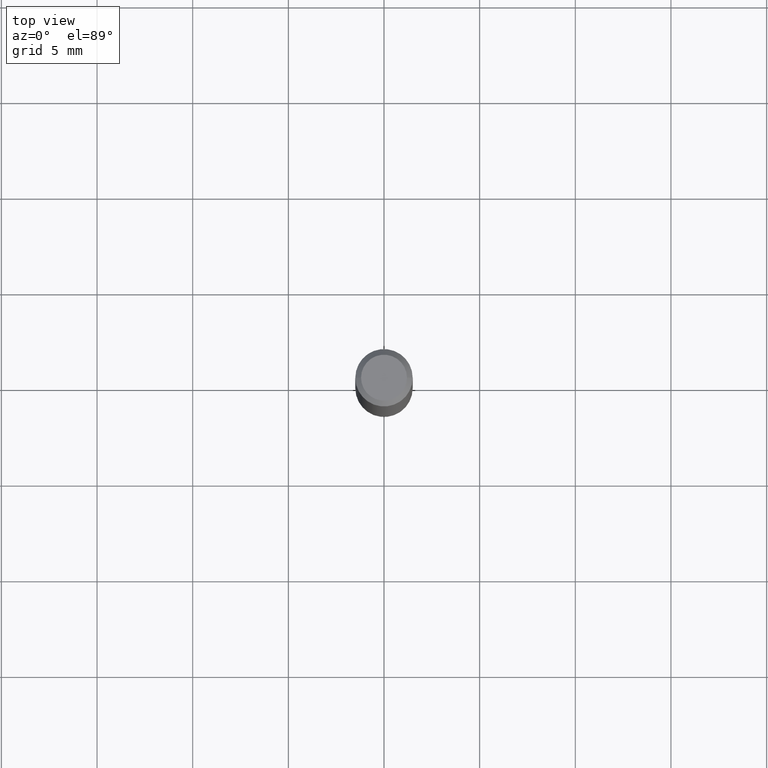
[diagram: clean part render]
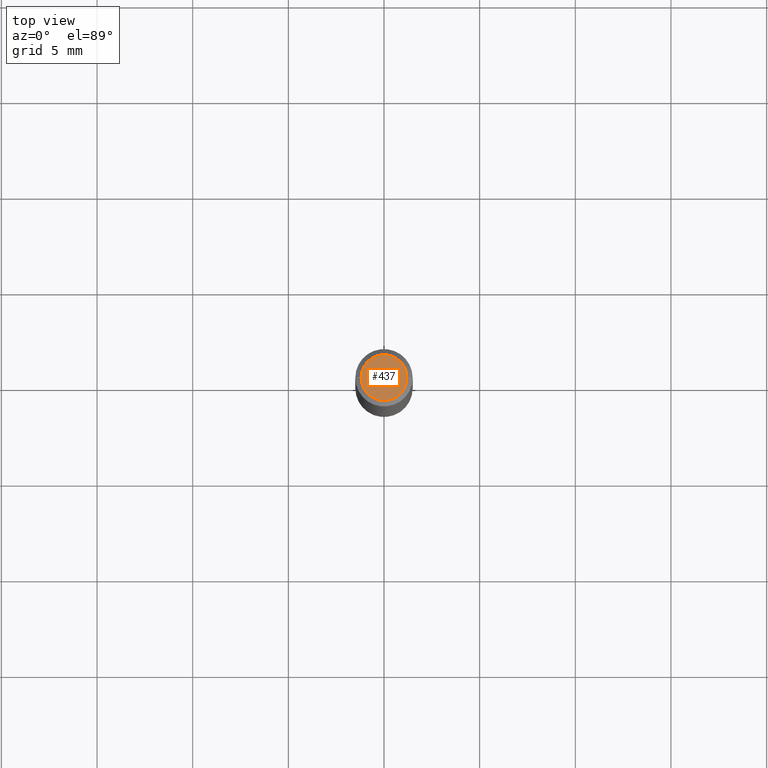
[diagram: same view with one face highlighted and labeled with its STEP entity id]
A machine part, top view. The second image highlights one B-rep face of the part: STEP entity #437.
In plain terms, the highlighted planar face has unit normal (0, -0, -1).
Its self-contained STEP definition (entity closure, byte-faithful):
#18 = CARTESIAN_POINT ( 'NONE',  ( -0.04724000000000000421, 3.504923541997677355E-16, -3.380025165670481712E-19 ) ) ;
#29 = ORIENTED_EDGE ( 'NONE', *, *, #427, .T. ) ;
#53 = CARTESIAN_POINT ( 'NONE',  ( 8.265746106709734507E-48, -1.180129479067563789E-33, -3.380025165646692144E-19 ) ) ;
#54 = DIRECTION ( 'NONE',  ( 1.000000000000000000, -6.982962677686266711E-15, 4.876185090822587894E-29 ) ) ;
#107 = VERTEX_POINT ( 'NONE', #256 ) ;
#113 = EDGE_CURVE ( 'NONE', #107, #342, #115, .T. ) ;
#114 = DIRECTION ( 'NONE',  ( 1.000000000000000000, -6.982962677686266711E-15, 4.876185090822587894E-29 ) ) ;
#115 = CIRCLE ( 'NONE', #478, 0.04724000000000000421 ) ;
#213 = EDGE_LOOP ( 'NONE', ( #29, #286 ) ) ;
#218 = DIRECTION ( 'NONE',  ( 2.438088387897960049E-29, -3.491481338843145188E-15, -1.000000000000000000 ) ) ;
#223 = AXIS2_PLACEMENT_3D ( 'NONE', #53, #389, #114 ) ;
#230 = FACE_OUTER_BOUND ( 'NONE', #213, .T. ) ;
#256 = CARTESIAN_POINT ( 'NONE',  ( 0.04724000000000000421, -3.852183633974369345E-16, -3.380025165621689721E-19 ) ) ;
#260 = CARTESIAN_POINT ( 'NONE',  ( 4.132873053354867254E-48, -5.900647395337818946E-34, -1.690012582823346072E-19 ) ) ;
#272 = AXIS2_PLACEMENT_3D ( 'NONE', #260, #218, #379 ) ;
#280 = DIRECTION ( 'NONE',  ( -2.445468806185136597E-29, 3.491481338843145583E-15, 1.000000000000000000 ) ) ;
#286 = ORIENTED_EDGE ( 'NONE', *, *, #113, .T. ) ;
#297 = PLANE ( 'NONE',  #272 ) ;
#303 = CARTESIAN_POINT ( 'NONE',  ( 8.265746106709734507E-48, -1.180129479067563789E-33, -3.380025165646692144E-19 ) ) ;
#317 = CIRCLE ( 'NONE', #223, 0.04724000000000000421 ) ;
#342 = VERTEX_POINT ( 'NONE', #18 ) ;
#379 = DIRECTION ( 'NONE',  ( -1.000000000000000000, 6.982962677686265922E-15, -4.876176775795935793E-29 ) ) ;
#389 = DIRECTION ( 'NONE',  ( -2.445468806185136597E-29, 3.491481338843145583E-15, 1.000000000000000000 ) ) ;
#427 = EDGE_CURVE ( 'NONE', #342, #107, #317, .T. ) ;
#437 = ADVANCED_FACE ( 'NONE', ( #230 ), #297, .F. ) ;
#478 = AXIS2_PLACEMENT_3D ( 'NONE', #303, #280, #54 ) ;